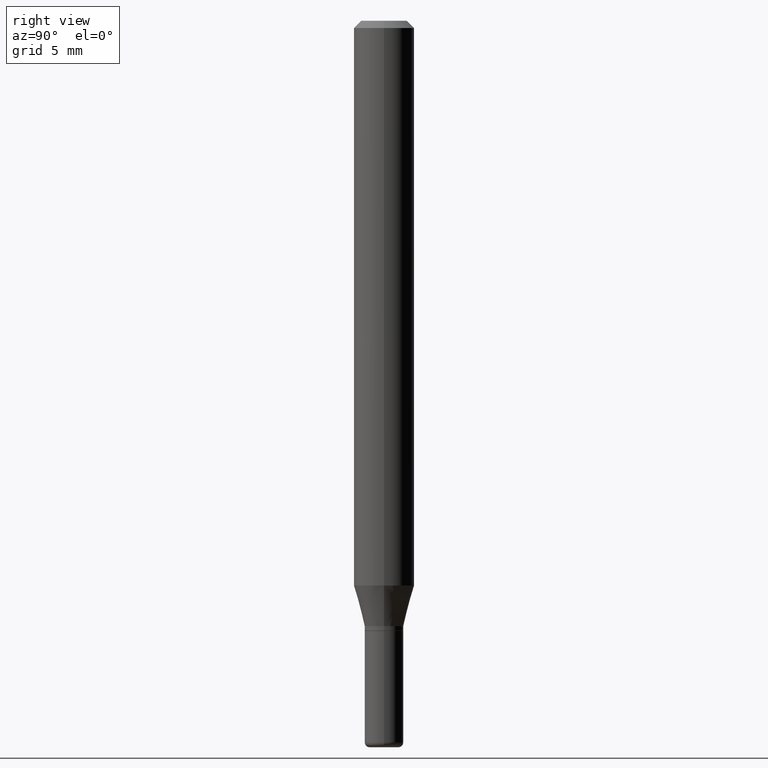
[diagram: clean part render]
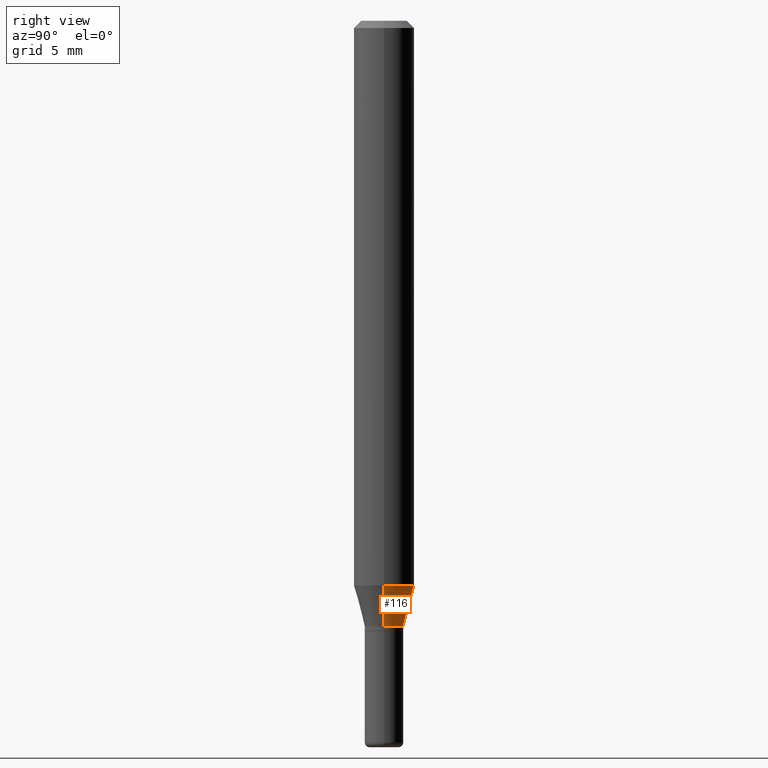
[diagram: same view with one face highlighted and labeled with its STEP entity id]
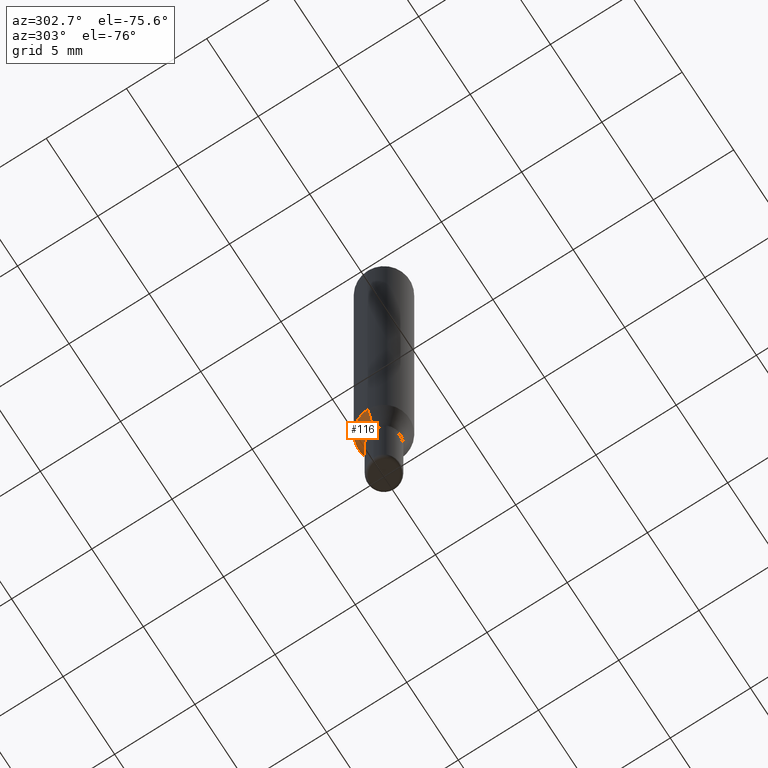
[diagram: same view with one face highlighted and labeled with its STEP entity id]
A machine part, right view. The second image highlights one B-rep face of the part: STEP entity #116.
A second angle (auxiliary view) of the same face is appended — the face is thin or edge-on in the first view.
In plain terms, the highlighted conical surface has half-angle 15 deg.
Its self-contained STEP definition (entity closure, byte-faithful):
#2 = EDGE_CURVE ( 'NONE', #372, #59, #259, .T. ) ;
#5 = CIRCLE ( 'NONE', #278, 0.03999999999999995920 ) ;
#7 = DIRECTION ( 'NONE',  ( 1.000000000000000000, -6.982962677686279332E-15, 0.000000000000000000 ) ) ;
#52 = FACE_OUTER_BOUND ( 'NONE', #492, .T. ) ;
#59 = VERTEX_POINT ( 'NONE', #66 ) ;
#65 = CARTESIAN_POINT ( 'NONE',  ( 0.03999999999999995920, -4.643670180661383298E-15, -1.250000000000000000 ) ) ;
#66 = CARTESIAN_POINT ( 'NONE',  ( 0.06250000000000000000, -4.507603161528896392E-15, -1.166028856829700144 ) ) ;
#76 = VECTOR ( 'NONE', #432, 39.37007874015748143 ) ;
#116 = ADVANCED_FACE ( 'NONE', ( #52 ), #430, .T. ) ;
#123 = VECTOR ( 'NONE', #215, 39.37007874015748143 ) ;
#132 = EDGE_CURVE ( 'NONE', #59, #178, #511, .T. ) ;
#140 = AXIS2_PLACEMENT_3D ( 'NONE', #366, #251, #183 ) ;
#145 = EDGE_CURVE ( 'NONE', #319, #178, #266, .T. ) ;
#178 = VERTEX_POINT ( 'NONE', #510 ) ;
#183 = DIRECTION ( 'NONE',  ( 1.000000000000000000, -6.982962677686262766E-15, 0.000000000000000000 ) ) ;
#184 = ORIENTED_EDGE ( 'NONE', *, *, #145, .T. ) ;
#215 = DIRECTION ( 'NONE',  ( 0.2588190451025205174, 1.565188264969628476E-15, 0.9659258262890684232 ) ) ;
#251 = DIRECTION ( 'NONE',  ( -2.445468806185136597E-29, 3.491481338843145583E-15, 1.000000000000000000 ) ) ;
#252 = ORIENTED_EDGE ( 'NONE', *, *, #474, .T. ) ;
#259 = LINE ( 'NONE', #65, #123 ) ;
#266 = LINE ( 'NONE', #426, #76 ) ;
#273 = CARTESIAN_POINT ( 'NONE',  ( 0.03999999999999995920, -4.643670180661383298E-15, -1.250000000000000000 ) ) ;
#278 = AXIS2_PLACEMENT_3D ( 'NONE', #281, #449, #357 ) ;
#281 = CARTESIAN_POINT ( 'NONE',  ( 3.056836007731421306E-29, -4.364351673553932471E-15, -1.250000000000000000 ) ) ;
#319 = VERTEX_POINT ( 'NONE', #353 ) ;
#353 = CARTESIAN_POINT ( 'NONE',  ( -0.03999999999999995920, -3.853606681786666336E-15, -1.250000000000000000 ) ) ;
#355 = AXIS2_PLACEMENT_3D ( 'NONE', #453, #359, #7 ) ;
#357 = DIRECTION ( 'NONE',  ( 1.000000000000000000, -6.982962677686279332E-15, 0.000000000000000000 ) ) ;
#359 = DIRECTION ( 'NONE',  ( -2.445468806185136597E-29, 3.491481338843145583E-15, 1.000000000000000000 ) ) ;
#366 = CARTESIAN_POINT ( 'NONE',  ( 2.851487196488746564E-29, -4.071167994173503933E-15, -1.166028856829700144 ) ) ;
#372 = VERTEX_POINT ( 'NONE', #273 ) ;
#413 = ORIENTED_EDGE ( 'NONE', *, *, #132, .F. ) ;
#426 = CARTESIAN_POINT ( 'NONE',  ( -0.03999999999999995920, -4.080134579249892145E-15, -1.250000000000000000 ) ) ;
#430 = CONICAL_SURFACE ( 'NONE', #355, 0.03999999999999995920, 0.2617993877991491858 ) ;
#432 = DIRECTION ( 'NONE',  ( -0.2588190451025205174, 5.211531920934544731E-15, 0.9659258262890684232 ) ) ;
#449 = DIRECTION ( 'NONE',  ( -2.445468806185136597E-29, 3.491481338843145583E-15, 1.000000000000000000 ) ) ;
#453 = CARTESIAN_POINT ( 'NONE',  ( 3.056836007731421306E-29, -4.364351673553932471E-15, -1.250000000000000000 ) ) ;
#457 = ORIENTED_EDGE ( 'NONE', *, *, #2, .F. ) ;
#474 = EDGE_CURVE ( 'NONE', #372, #319, #5, .T. ) ;
#492 = EDGE_LOOP ( 'NONE', ( #252, #184, #413, #457 ) ) ;
#510 = CARTESIAN_POINT ( 'NONE',  ( -0.06250000000000000000, -3.627078784323441317E-15, -1.166028856829700144 ) ) ;
#511 = CIRCLE ( 'NONE', #140, 0.06250000000000000000 ) ;